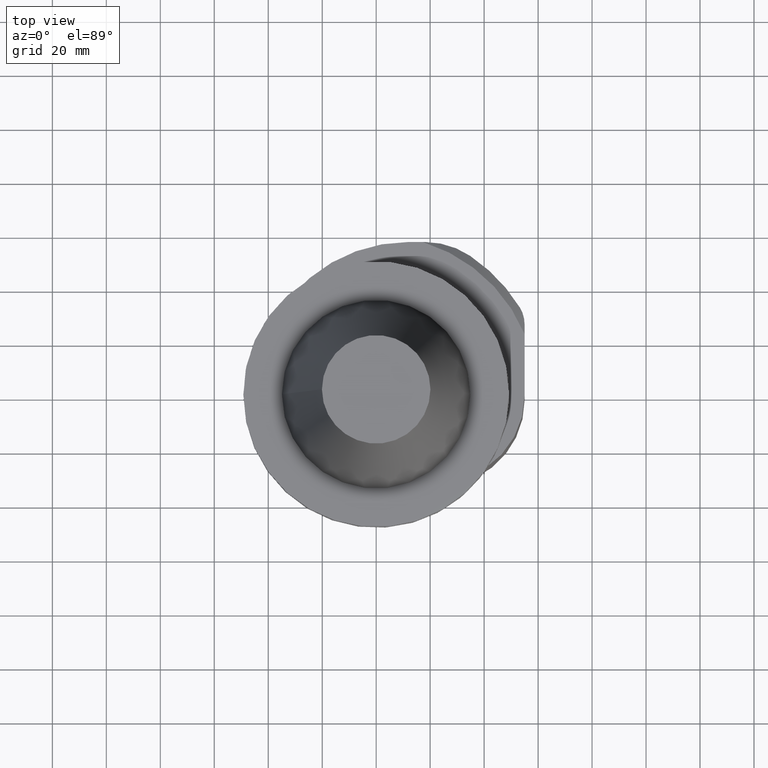
[diagram: clean part render]
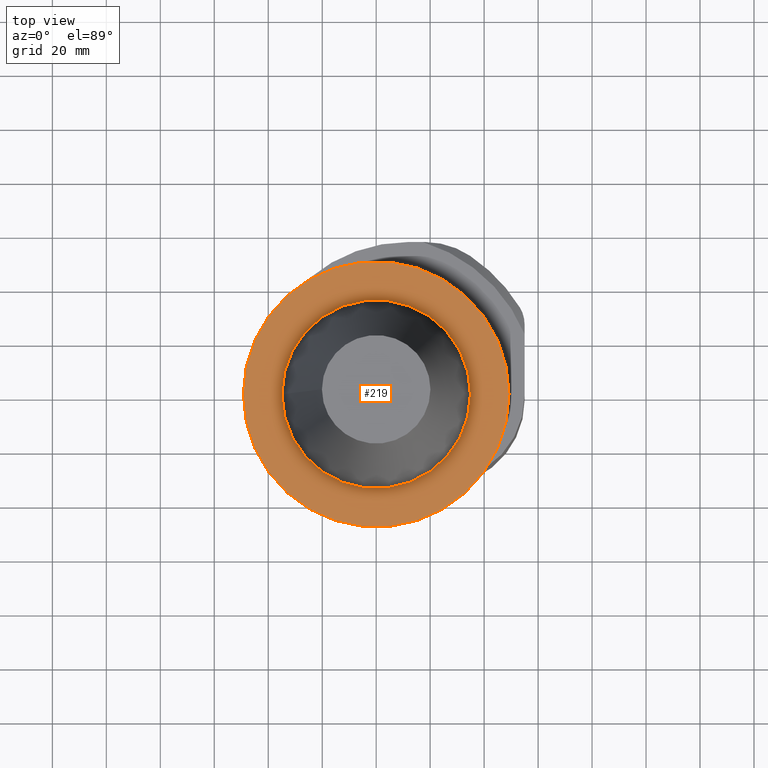
[diagram: same view with one face highlighted and labeled with its STEP entity id]
A machine part, top view. The second image highlights one B-rep face of the part: STEP entity #219.
In plain terms, the highlighted planar face has unit normal (0, 0, 1).
Its self-contained STEP definition (entity closure, byte-faithful):
#219=ADVANCED_FACE('Unnamed[1]',(#507,#508),#509,.T.);
#286=EDGE_CURVE('Unnamed[1]',#594,#594,#595,.T.);
#299=EDGE_CURVE('Unnamed[1]',#610,#610,#611,.T.);
#507=FACE_OUTER_BOUND('',#895,.T.);
#508=FACE_BOUND('',#896,.T.);
#509=PLANE('',#897);
#594=VERTEX_POINT('',#1038);
#595=CIRCLE('',#1039,49.2125);
#610=VERTEX_POINT('',#1063);
#611=CIRCLE('',#1064,34.925);
#895=EDGE_LOOP('',(#1310));
#896=EDGE_LOOP('',(#1311));
#897=AXIS2_PLACEMENT_3D('',#1312,#1313,#1314);
#1038=CARTESIAN_POINT('',(-49.2125000000001,8.94834108051984E-015,-1.49999999999994));
#1039=AXIS2_PLACEMENT_3D('',#1423,#1424,#1425);
#1063=CARTESIAN_POINT('',(-34.9250000000001,6.32376990909717E-015,-1.49999999999996));
#1064=AXIS2_PLACEMENT_3D('',#1438,#1439,#1440);
#1310=ORIENTED_EDGE('',*,*,#286,.F.);
#1311=ORIENTED_EDGE('',*,*,#299,.T.);
#1312=CARTESIAN_POINT('',(-42.0687500000001,7.63605549480851E-015,-1.49999999999995));
#1313=DIRECTION('',(1.27624149284137E-015,6.12323399573674E-017,1.0));
#1314=DIRECTION('',(1.0,-1.83697019872103E-016,-1.27624149284137E-015));
#1423=CARTESIAN_POINT('',(-1.47295962815533E-013,-9.18485099360245E-017,-1.5));
#1424=DIRECTION('',(-1.28076709777704E-015,-6.12323399573674E-017,-1.0));
#1425=DIRECTION('',(-1.0,1.83697019872103E-016,1.28076709777704E-015));
#1438=CARTESIAN_POINT('',(-1.47295962815533E-013,-9.18485099360245E-017,-1.5));
#1439=DIRECTION('',(-1.28076709777704E-015,-6.12323399573674E-017,-1.0));
#1440=DIRECTION('',(-1.0,1.83697019872103E-016,1.28076709777704E-015));